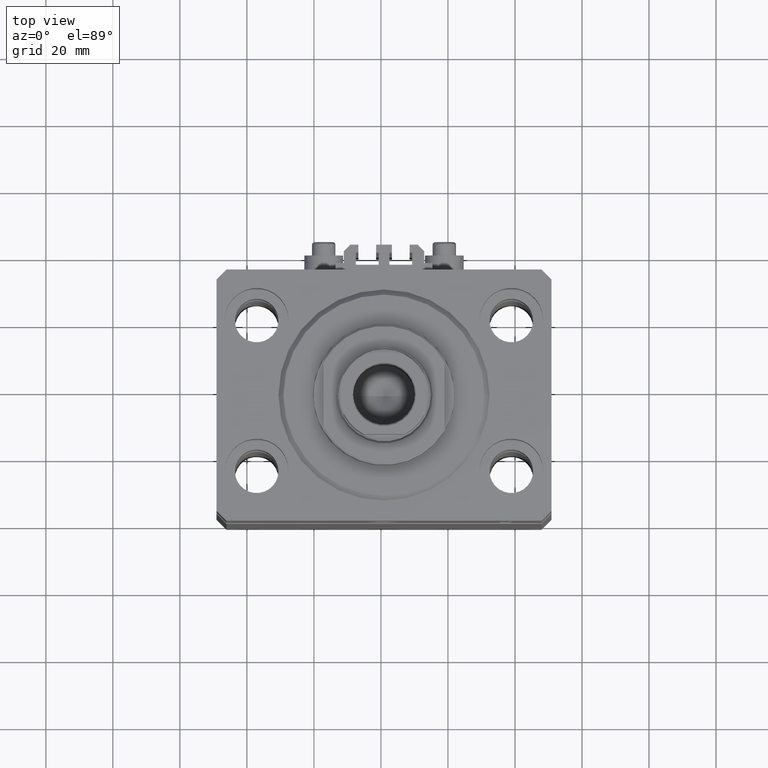
[diagram: clean part render]
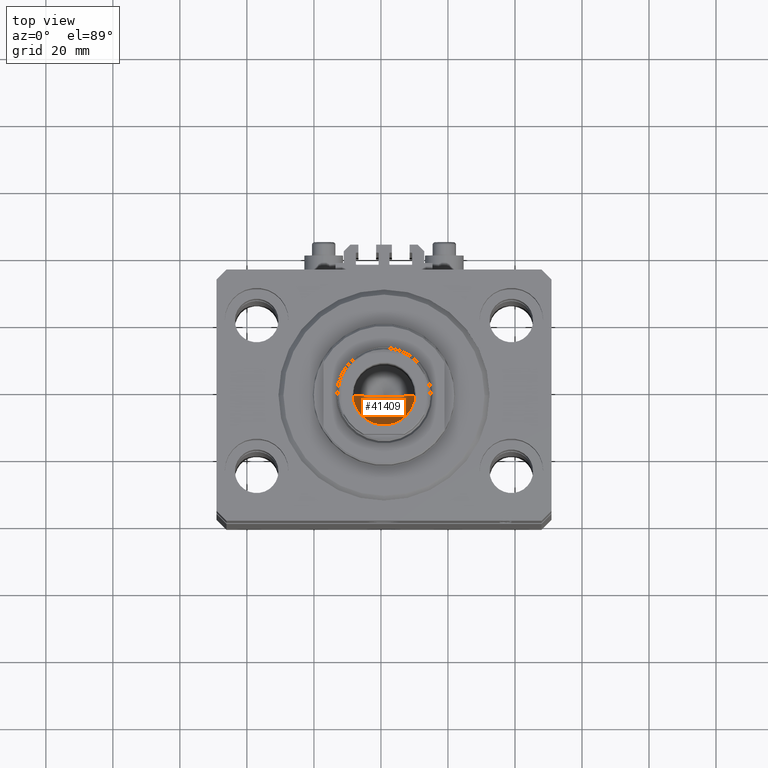
[diagram: same view with one face highlighted and labeled with its STEP entity id]
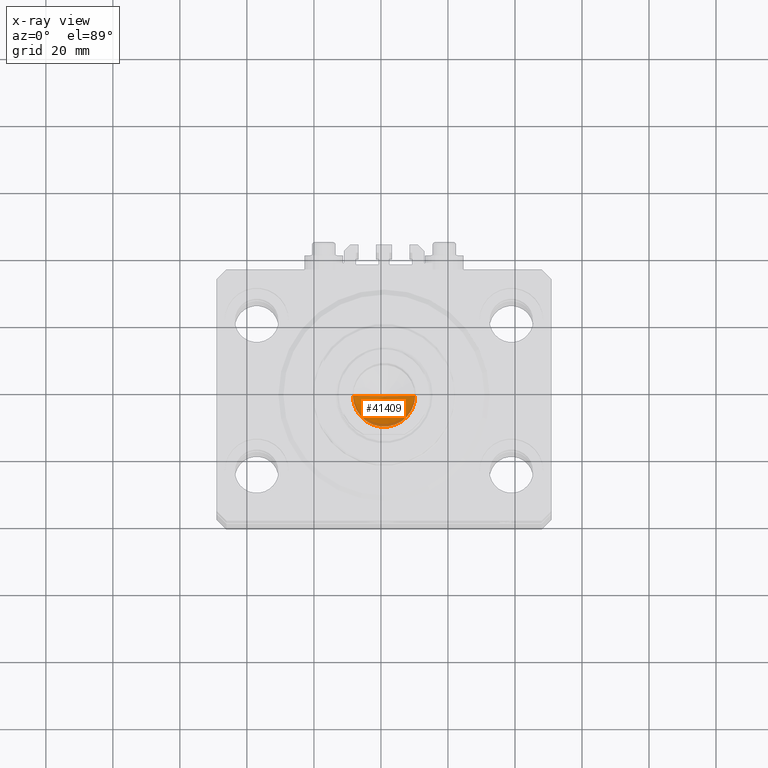
[diagram: x-ray of the same camera — body ghosted, the highlighted face saturated]
A machine part, top view. The second image highlights one B-rep face of the part: STEP entity #41409.
The next image is the same camera in x-ray: the body ghosted, the highlighted face saturated — about 8% of this face is hidden behind the body in this view.
In plain terms, the highlighted conical surface has half-angle 59 deg.
Its self-contained STEP definition (entity closure, byte-faithful):
#603 = CARTESIAN_POINT ( 'NONE',  ( 9.249999999999994671, 0.000000000000000000, 128.0000000000000000 ) ) ;
#1303 = EDGE_CURVE ( 'NONE', #43886, #36687, #19976, .T. ) ;
#2194 = ORIENTED_EDGE ( 'NONE', *, *, #1303, .T. ) ;
#7290 = VERTEX_POINT ( 'NONE', #43165 ) ;
#9183 = DIRECTION ( 'NONE',  ( 1.000000000000000000, 0.000000000000000000, 0.000000000000000000 ) ) ;
#9862 = CARTESIAN_POINT ( 'NONE',  ( -9.249999999999994671, 1.132798289211300909E-15, 128.0000000000000000 ) ) ;
#9933 = CARTESIAN_POINT ( 'NONE',  ( 9.249999999999994671, 0.000000000000000000, 128.0000000000000000 ) ) ;
#12772 = ORIENTED_EDGE ( 'NONE', *, *, #44284, .T. ) ;
#13727 = CONICAL_SURFACE ( 'NONE', #31437, 9.249999999999994671, 1.029744258676653423 ) ;
#15731 = ORIENTED_EDGE ( 'NONE', *, *, #33366, .F. ) ;
#16173 = FACE_OUTER_BOUND ( 'NONE', #28775, .T. ) ;
#18687 = LINE ( 'NONE', #603, #45430 ) ;
#18701 = DIRECTION ( 'NONE',  ( -0.8571673007021117785, 1.049727191138617956E-16, 0.5150380749100550437 ) ) ;
#19235 = VECTOR ( 'NONE', #18701, 1000.000000000000000 ) ;
#19976 = CIRCLE ( 'NONE', #39931, 9.249999999999994671 ) ;
#22312 = CARTESIAN_POINT ( 'NONE',  ( -9.249999999999994671, 1.132798289211300909E-15, 128.0000000000000000 ) ) ;
#28775 = EDGE_LOOP ( 'NONE', ( #15731, #12772, #2194 ) ) ;
#30497 = DIRECTION ( 'NONE',  ( 1.000000000000000000, 0.000000000000000000, 0.000000000000000000 ) ) ;
#31437 = AXIS2_PLACEMENT_3D ( 'NONE', #35182, #42866, #9183 ) ;
#31965 = LINE ( 'NONE', #22312, #19235 ) ;
#33366 = EDGE_CURVE ( 'NONE', #7290, #36687, #18687, .T. ) ;
#33389 = DIRECTION ( 'NONE',  ( -0.000000000000000000, -0.000000000000000000, 1.000000000000000000 ) ) ;
#34097 = DIRECTION ( 'NONE',  ( 0.8571673007021117785, 0.000000000000000000, 0.5150380749100550437 ) ) ;
#35182 = CARTESIAN_POINT ( 'NONE',  ( 0.000000000000000000, 0.000000000000000000, 128.0000000000000000 ) ) ;
#36687 = VERTEX_POINT ( 'NONE', #9933 ) ;
#39931 = AXIS2_PLACEMENT_3D ( 'NONE', #47140, #33389, #30497 ) ;
#41409 = ADVANCED_FACE ( 'NONE', ( #16173 ), #13727, .F. ) ;
#42866 = DIRECTION ( 'NONE',  ( -0.000000000000000000, -0.000000000000000000, 1.000000000000000000 ) ) ;
#43165 = CARTESIAN_POINT ( 'NONE',  ( -1.046994375366439223E-14, 0.000000000000000000, 122.4420392739950643 ) ) ;
#43886 = VERTEX_POINT ( 'NONE', #9862 ) ;
#44284 = EDGE_CURVE ( 'NONE', #7290, #43886, #31965, .T. ) ;
#45430 = VECTOR ( 'NONE', #34097, 1000.000000000000000 ) ;
#47140 = CARTESIAN_POINT ( 'NONE',  ( 0.000000000000000000, 0.000000000000000000, 128.0000000000000000 ) ) ;